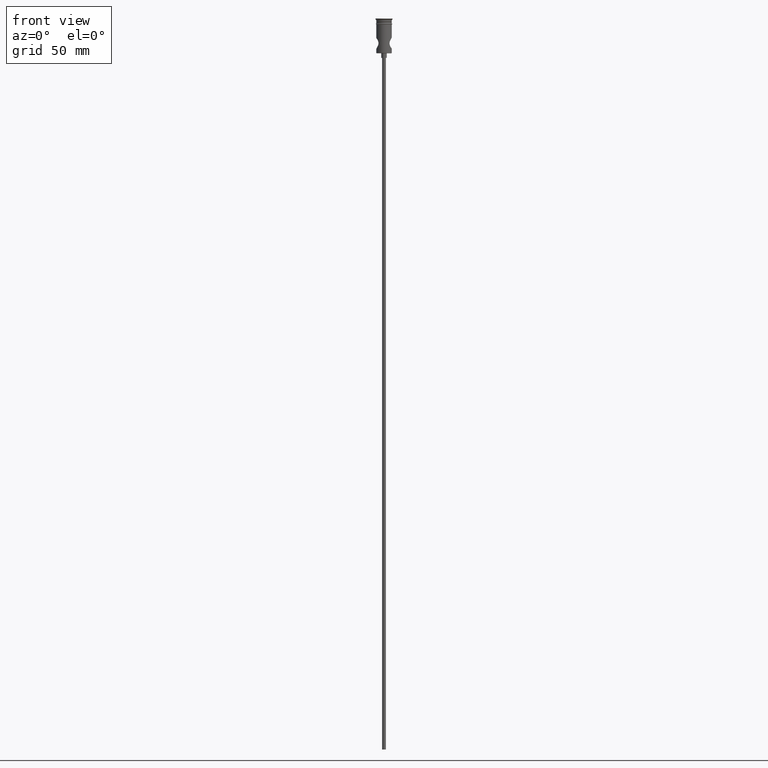
[diagram: clean part render]
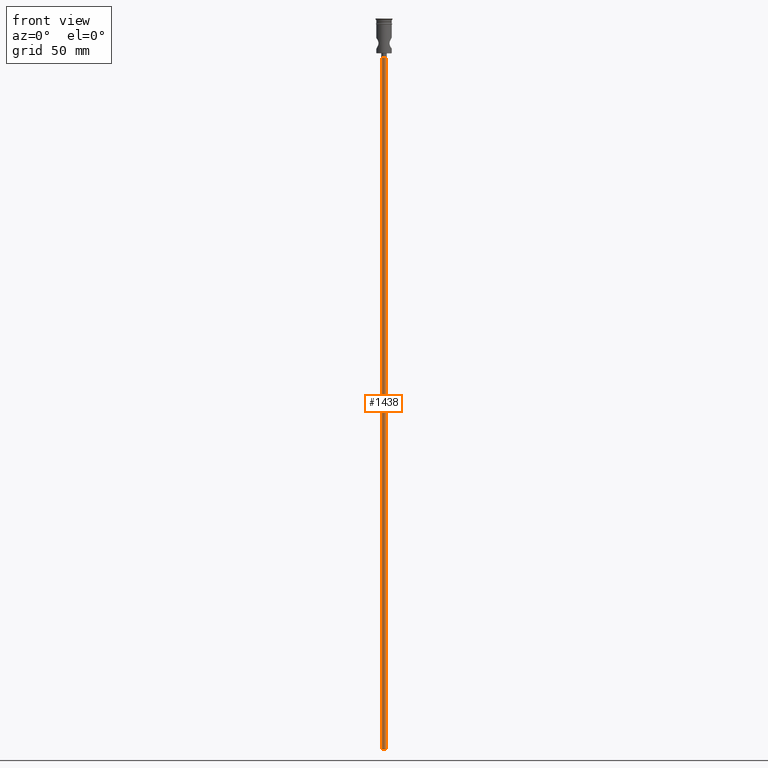
[diagram: same view with one face highlighted and labeled with its STEP entity id]
A machine part, front view. The second image highlights one B-rep face of the part: STEP entity #1438.
In plain terms, the highlighted cylindrical surface (edge-blend (fillet) strip) has radius 1.25 mm, axis along (-0, -0, 1).
Its self-contained STEP definition (entity closure, byte-faithful):
#3 = VERTEX_POINT ( 'NONE', #248 ) ;
#14 = DIRECTION ( 'NONE',  ( 1.000000000000000000, 0.000000000000000000, 0.000000000000000000 ) ) ;
#28 = VERTEX_POINT ( 'NONE', #784 ) ;
#40 = CARTESIAN_POINT ( 'NONE',  ( 0.000000000000000000, 0.000000000000000000, -472.5000000000000568 ) ) ;
#56 = CIRCLE ( 'NONE', #825, 1.250000000000000000 ) ;
#105 = DIRECTION ( 'NONE',  ( -0.000000000000000000, -0.000000000000000000, 1.000000000000000000 ) ) ;
#147 = CIRCLE ( 'NONE', #1132, 1.250000000000000000 ) ;
#170 = CARTESIAN_POINT ( 'NONE',  ( -1.250000000000000000, 1.530808498934191571E-16, -472.5000000000000568 ) ) ;
#212 = CARTESIAN_POINT ( 'NONE',  ( 0.000000000000000000, 0.000000000000000000, -472.5000000000000568 ) ) ;
#218 = VECTOR ( 'NONE', #469, 1000.000000000000000 ) ;
#239 = EDGE_CURVE ( 'NONE', #28, #829, #56, .T. ) ;
#248 = CARTESIAN_POINT ( 'NONE',  ( 1.250000000000000000, 0.000000000000000000, -472.5000000000000568 ) ) ;
#256 = LINE ( 'NONE', #693, #218 ) ;
#304 = EDGE_CURVE ( 'NONE', #527, #829, #542, .T. ) ;
#310 = CARTESIAN_POINT ( 'NONE',  ( 0.000000000000000000, 0.000000000000000000, -25.50000000000000000 ) ) ;
#469 = DIRECTION ( 'NONE',  ( -0.000000000000000000, -0.000000000000000000, 1.000000000000000000 ) ) ;
#527 = VERTEX_POINT ( 'NONE', #170 ) ;
#530 = DIRECTION ( 'NONE',  ( 0.000000000000000000, 0.000000000000000000, -1.000000000000000000 ) ) ;
#542 = LINE ( 'NONE', #764, #672 ) ;
#605 = EDGE_CURVE ( 'NONE', #3, #527, #147, .T. ) ;
#645 = DIRECTION ( 'NONE',  ( -1.000000000000000000, 0.000000000000000000, 0.000000000000000000 ) ) ;
#658 = DIRECTION ( 'NONE',  ( -0.000000000000000000, -0.000000000000000000, 1.000000000000000000 ) ) ;
#672 = VECTOR ( 'NONE', #658, 1000.000000000000000 ) ;
#693 = CARTESIAN_POINT ( 'NONE',  ( 1.250000000000000000, 0.000000000000000000, -472.5000000000000568 ) ) ;
#764 = CARTESIAN_POINT ( 'NONE',  ( -1.250000000000000000, 1.530808498934191571E-16, -472.5000000000000568 ) ) ;
#784 = CARTESIAN_POINT ( 'NONE',  ( 1.250000000000000000, 0.000000000000000000, -25.50000000000000000 ) ) ;
#790 = ORIENTED_EDGE ( 'NONE', *, *, #605, .F. ) ;
#825 = AXIS2_PLACEMENT_3D ( 'NONE', #310, #530, #645 ) ;
#828 = CARTESIAN_POINT ( 'NONE',  ( -1.250000000000000000, 1.530808498934191571E-16, -25.50000000000000000 ) ) ;
#829 = VERTEX_POINT ( 'NONE', #828 ) ;
#1046 = EDGE_LOOP ( 'NONE', ( #1192, #790, #1130, #1303 ) ) ;
#1079 = DIRECTION ( 'NONE',  ( 0.000000000000000000, 0.000000000000000000, -1.000000000000000000 ) ) ;
#1130 = ORIENTED_EDGE ( 'NONE', *, *, #1213, .T. ) ;
#1132 = AXIS2_PLACEMENT_3D ( 'NONE', #40, #1079, #1135 ) ;
#1135 = DIRECTION ( 'NONE',  ( -1.000000000000000000, 0.000000000000000000, 0.000000000000000000 ) ) ;
#1192 = ORIENTED_EDGE ( 'NONE', *, *, #304, .F. ) ;
#1213 = EDGE_CURVE ( 'NONE', #3, #28, #256, .T. ) ;
#1303 = ORIENTED_EDGE ( 'NONE', *, *, #239, .T. ) ;
#1309 = CYLINDRICAL_SURFACE ( 'NONE', #1401, 1.250000000000000000 ) ;
#1311 = FACE_OUTER_BOUND ( 'NONE', #1046, .T. ) ;
#1401 = AXIS2_PLACEMENT_3D ( 'NONE', #212, #105, #14 ) ;
#1438 = ADVANCED_FACE ( 'NONE', ( #1311 ), #1309, .T. ) ;